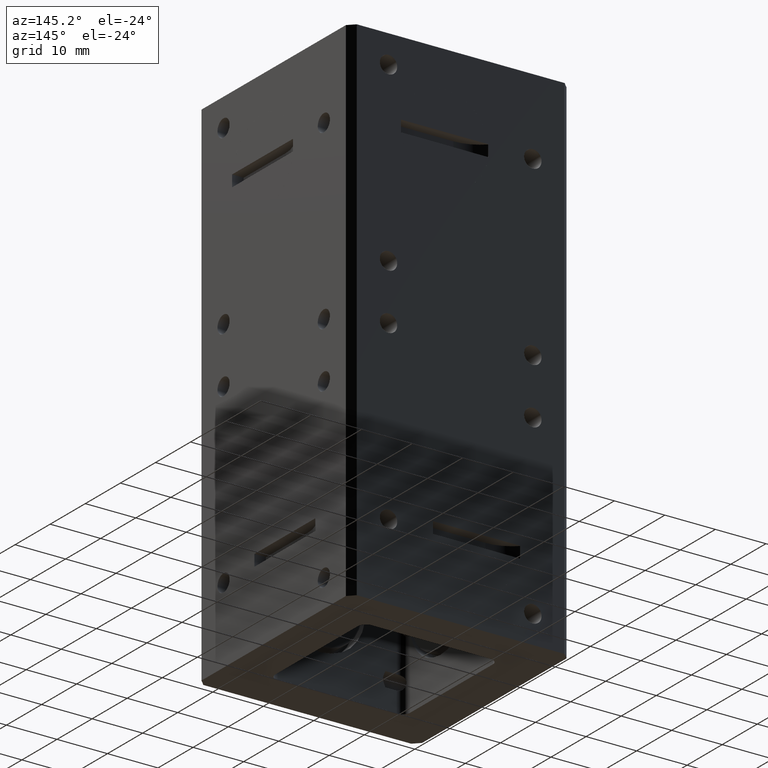
[diagram: clean part render]
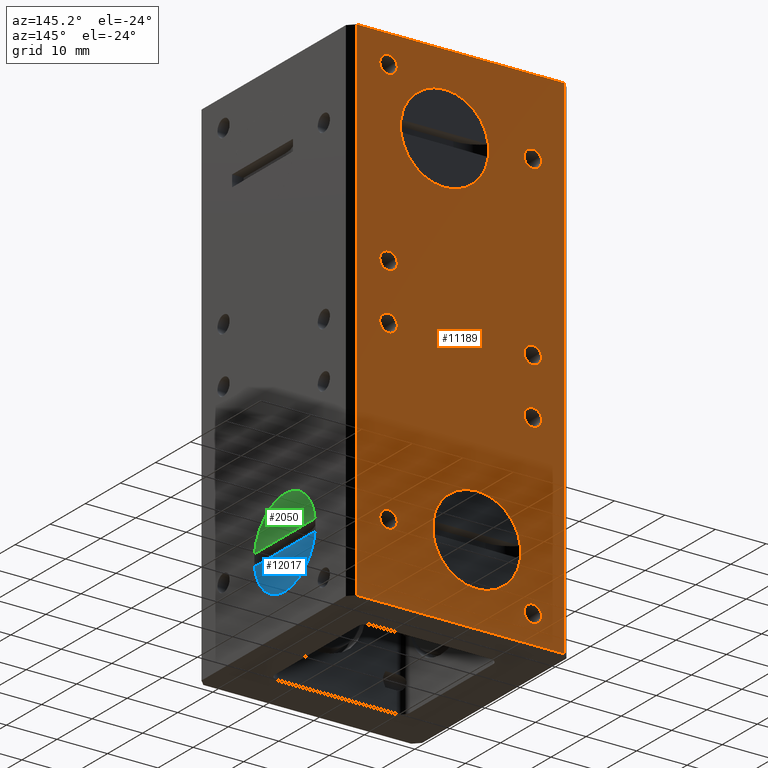
[diagram: same view with three faces highlighted in distinct colors, each labeled with its STEP entity id]
A machine part, auxiliary view with three faces highlighted in distinct colors.
Their STEP definitions:

[orange] entity #11189 — the highlighted planar face has unit normal (0, -1, 0).
#88 = AXIS2_PLACEMENT_3D ( 'NONE', #95, #17871, #4424 ) ;
#95 = CARTESIAN_POINT ( 'NONE',  ( 0.5624999999999998890, 0.8599999999999994316, -1.405999999999999917 ) ) ;
#109 = CARTESIAN_POINT ( 'NONE',  ( 0.5625000000000001110, 0.8599999999999994316, 1.848999999999999533 ) ) ;
#129 = ORIENTED_EDGE ( 'NONE', *, *, #7908, .F. ) ;
#264 = EDGE_CURVE ( 'NONE', #1842, #12292, #7792, .T. ) ;
#309 = VERTEX_POINT ( 'NONE', #17495 ) ;
#434 = AXIS2_PLACEMENT_3D ( 'NONE', #13406, #13317, #7281 ) ;
#470 = EDGE_CURVE ( 'NONE', #14263, #17972, #12404, .T. ) ;
#534 = CIRCLE ( 'NONE', #3014, 0.06799999999999958855 ) ;
#582 = CARTESIAN_POINT ( 'NONE',  ( -0.5624999999999998890, 0.8599999999999994316, -0.4739999999999995883 ) ) ;
#1021 = EDGE_LOOP ( 'NONE', ( #12176, #14943 ) ) ;
#1146 = EDGE_CURVE ( 'NONE', #15289, #16502, #15166, .T. ) ;
#1309 = CIRCLE ( 'NONE', #14279, 0.06799999999999965794 ) ;
#1315 = CIRCLE ( 'NONE', #3814, 0.06799999999999965794 ) ;
#1324 = DIRECTION ( 'NONE',  ( 0.000000000000000000, 0.000000000000000000, 1.000000000000000000 ) ) ;
#1355 = AXIS2_PLACEMENT_3D ( 'NONE', #5087, #10958, #12014 ) ;
#1435 = EDGE_CURVE ( 'NONE', #12044, #15687, #6507, .T. ) ;
#1735 = VERTEX_POINT ( 'NONE', #7807 ) ;
#1842 = VERTEX_POINT ( 'NONE', #14563 ) ;
#1938 = CARTESIAN_POINT ( 'NONE',  ( -0.8099999999999986100, 0.8599999999999994316, 2.000000000000000000 ) ) ;
#2017 = EDGE_LOOP ( 'NONE', ( #7349, #8642 ) ) ;
#2065 = CARTESIAN_POINT ( 'NONE',  ( 0.8099999999999993872, 0.8599999999999994316, 2.000000000000000000 ) ) ;
#2158 = DIRECTION ( 'NONE',  ( -1.000000000000000000, -0.000000000000000000, -0.000000000000000000 ) ) ;
#2169 = CARTESIAN_POINT ( 'NONE',  ( -0.5625000000000001110, 0.8599999999999994316, 0.03099999999999974998 ) ) ;
#2452 = AXIS2_PLACEMENT_3D ( 'NONE', #10950, #16778, #3603 ) ;
#2652 = DIRECTION ( 'NONE',  ( 0.000000000000000000, -1.000000000000000000, 0.000000000000000000 ) ) ;
#2660 = DIRECTION ( 'NONE',  ( -0.000000000000000000, 1.000000000000000000, -0.000000000000000000 ) ) ;
#2683 = DIRECTION ( 'NONE',  ( -0.000000000000000000, 1.000000000000000000, -0.000000000000000000 ) ) ;
#3014 = AXIS2_PLACEMENT_3D ( 'NONE', #5016, #10605, #7634 ) ;
#3208 = ORIENTED_EDGE ( 'NONE', *, *, #7103, .T. ) ;
#3260 = DIRECTION ( 'NONE',  ( -0.000000000000000000, 1.000000000000000000, -0.000000000000000000 ) ) ;
#3307 = AXIS2_PLACEMENT_3D ( 'NONE', #6373, #4992, #10776 ) ;
#3334 = EDGE_CURVE ( 'NONE', #7761, #1735, #1309, .T. ) ;
#3350 = DIRECTION ( 'NONE',  ( 0.000000000000000000, 0.000000000000000000, 1.000000000000000000 ) ) ;
#3514 = CARTESIAN_POINT ( 'NONE',  ( 0.5625000000000001110, 0.8599999999999994316, 0.03699999999999963041 ) ) ;
#3603 = DIRECTION ( 'NONE',  ( 0.000000000000000000, 0.000000000000000000, 1.000000000000000000 ) ) ;
#3811 = FACE_BOUND ( 'NONE', #8923, .T. ) ;
#3814 = AXIS2_PLACEMENT_3D ( 'NONE', #12681, #9511, #11329 ) ;
#3905 = FACE_BOUND ( 'NONE', #7319, .T. ) ;
#4048 = EDGE_LOOP ( 'NONE', ( #3208, #6656, #9623, #8269 ) ) ;
#4105 = CARTESIAN_POINT ( 'NONE',  ( -0.5624999999999998890, 0.8599999999999994316, 1.473999999999999533 ) ) ;
#4174 = EDGE_CURVE ( 'NONE', #17972, #14263, #18911, .T. ) ;
#4415 = DIRECTION ( 'NONE',  ( -0.000000000000000000, 1.000000000000000000, -0.000000000000000000 ) ) ;
#4424 = DIRECTION ( 'NONE',  ( 0.000000000000000000, 0.000000000000000000, 1.000000000000000000 ) ) ;
#4468 = CARTESIAN_POINT ( 'NONE',  ( -0.5625000000000001110, 0.8599999999999994316, 0.09899999999999933853 ) ) ;
#4556 = CIRCLE ( 'NONE', #12539, 0.06799999999999958855 ) ;
#4632 = AXIS2_PLACEMENT_3D ( 'NONE', #10798, #3260, #3350 ) ;
#4714 = LINE ( 'NONE', #14976, #11012 ) ;
#4723 = AXIS2_PLACEMENT_3D ( 'NONE', #6758, #11542, #10101 ) ;
#4978 = EDGE_CURVE ( 'NONE', #14436, #8352, #4556, .T. ) ;
#4992 = DIRECTION ( 'NONE',  ( -0.000000000000000000, 1.000000000000000000, -0.000000000000000000 ) ) ;
#5016 = CARTESIAN_POINT ( 'NONE',  ( -0.5624999999999998890, 0.8599999999999994316, -0.4059999999999999720 ) ) ;
#5081 = CARTESIAN_POINT ( 'NONE',  ( -0.8599999999999988765, 0.8599999999999994316, 2.000000000000000000 ) ) ;
#5087 = CARTESIAN_POINT ( 'NONE',  ( 0.1249999999999999584, 0.8599999999999994316, 1.375000000000000000 ) ) ;
#5125 = CARTESIAN_POINT ( 'NONE',  ( -0.5624999999999998890, 0.8599999999999994316, 1.405999999999999917 ) ) ;
#5134 = DIRECTION ( 'NONE',  ( -1.000000000000000000, -0.000000000000000000, -0.000000000000000000 ) ) ;
#5187 = DIRECTION ( 'NONE',  ( -0.000000000000000000, 1.000000000000000000, -0.000000000000000000 ) ) ;
#5286 = FACE_BOUND ( 'NONE', #10952, .T. ) ;
#5409 = VERTEX_POINT ( 'NONE', #582 ) ;
#5417 = CIRCLE ( 'NONE', #6037, 0.06799999999999958855 ) ;
#5570 = EDGE_CURVE ( 'NONE', #18494, #5980, #18985, .T. ) ;
#5772 = CARTESIAN_POINT ( 'NONE',  ( -0.5625000000000001110, 0.8599999999999994316, -1.781000000000000139 ) ) ;
#5980 = VERTEX_POINT ( 'NONE', #1938 ) ;
#6037 = AXIS2_PLACEMENT_3D ( 'NONE', #18136, #13532, #15042 ) ;
#6048 = AXIS2_PLACEMENT_3D ( 'NONE', #15807, #2652, #12489 ) ;
#6187 = VERTEX_POINT ( 'NONE', #17893 ) ;
#6200 = AXIS2_PLACEMENT_3D ( 'NONE', #7778, #4415, #13631 ) ;
#6373 = CARTESIAN_POINT ( 'NONE',  ( 0.5625000000000001110, 0.8599999999999994316, -0.03100000000000002406 ) ) ;
#6507 = CIRCLE ( 'NONE', #4632, 0.3437500000000000000 ) ;
#6511 = CARTESIAN_POINT ( 'NONE',  ( -0.1250000000000000278, 0.8599999999999994316, -1.031250000000000000 ) ) ;
#6564 = CARTESIAN_POINT ( 'NONE',  ( 0.5624999999999998890, 0.8599999999999994316, 0.4059999999999999720 ) ) ;
#6647 = AXIS2_PLACEMENT_3D ( 'NONE', #5125, #8204, #15091 ) ;
#6654 = DIRECTION ( 'NONE',  ( -0.000000000000000000, 1.000000000000000000, -0.000000000000000000 ) ) ;
#6656 = ORIENTED_EDGE ( 'NONE', *, *, #5570, .T. ) ;
#6720 = ORIENTED_EDGE ( 'NONE', *, *, #11896, .F. ) ;
#6758 = CARTESIAN_POINT ( 'NONE',  ( -0.5624999999999998890, 0.8599999999999994316, 1.405999999999999917 ) ) ;
#6855 = AXIS2_PLACEMENT_3D ( 'NONE', #6564, #6654, #9509 ) ;
#6941 = FACE_BOUND ( 'NONE', #14538, .T. ) ;
#7021 = FACE_BOUND ( 'NONE', #18147, .T. ) ;
#7041 = AXIS2_PLACEMENT_3D ( 'NONE', #15844, #2683, #14433 ) ;
#7103 = EDGE_CURVE ( 'NONE', #6187, #18494, #15284, .T. ) ;
#7165 = DIRECTION ( 'NONE',  ( -0.000000000000000000, 1.000000000000000000, -0.000000000000000000 ) ) ;
#7212 = EDGE_CURVE ( 'NONE', #14196, #6187, #4714, .T. ) ;
#7227 = ORIENTED_EDGE ( 'NONE', *, *, #3334, .F. ) ;
#7281 = DIRECTION ( 'NONE',  ( 0.000000000000000000, 0.000000000000000000, 1.000000000000000000 ) ) ;
#7286 = AXIS2_PLACEMENT_3D ( 'NONE', #13011, #7165, #11576 ) ;
#7298 = ORIENTED_EDGE ( 'NONE', *, *, #19003, .F. ) ;
#7319 = EDGE_LOOP ( 'NONE', ( #10813, #9603 ) ) ;
#7349 = ORIENTED_EDGE ( 'NONE', *, *, #264, .F. ) ;
#7428 = AXIS2_PLACEMENT_3D ( 'NONE', #9575, #9668, #15496 ) ;
#7634 = DIRECTION ( 'NONE',  ( 0.000000000000000000, 0.000000000000000000, 1.000000000000000000 ) ) ;
#7761 = VERTEX_POINT ( 'NONE', #9049 ) ;
#7778 = CARTESIAN_POINT ( 'NONE',  ( -0.1250000000000000278, 0.8599999999999994316, -1.375000000000000000 ) ) ;
#7792 = CIRCLE ( 'NONE', #88, 0.06799999999999965794 ) ;
#7807 = CARTESIAN_POINT ( 'NONE',  ( -0.5625000000000001110, 0.8599999999999994316, -1.848999999999999755 ) ) ;
#7881 = CARTESIAN_POINT ( 'NONE',  ( -0.5625000000000001110, 0.8599999999999994316, -0.03699999999999983857 ) ) ;
#7908 = EDGE_CURVE ( 'NONE', #15490, #9451, #17453, .T. ) ;
#8165 = LINE ( 'NONE', #5081, #17230 ) ;
#8171 = FACE_BOUND ( 'NONE', #11935, .T. ) ;
#8204 = DIRECTION ( 'NONE',  ( -0.000000000000000000, 1.000000000000000000, -0.000000000000000000 ) ) ;
#8269 = ORIENTED_EDGE ( 'NONE', *, *, #7212, .T. ) ;
#8352 = VERTEX_POINT ( 'NONE', #4468 ) ;
#8546 = VERTEX_POINT ( 'NONE', #109 ) ;
#8571 = ORIENTED_EDGE ( 'NONE', *, *, #18595, .F. ) ;
#8605 = ORIENTED_EDGE ( 'NONE', *, *, #10422, .F. ) ;
#8638 = EDGE_CURVE ( 'NONE', #5409, #309, #534, .T. ) ;
#8642 = ORIENTED_EDGE ( 'NONE', *, *, #16126, .F. ) ;
#8651 = CIRCLE ( 'NONE', #15658, 0.06799999999999965794 ) ;
#8877 = ORIENTED_EDGE ( 'NONE', *, *, #11144, .F. ) ;
#8923 = EDGE_LOOP ( 'NONE', ( #9294, #8605 ) ) ;
#9049 = CARTESIAN_POINT ( 'NONE',  ( -0.5625000000000001110, 0.8599999999999994316, -1.713000000000000522 ) ) ;
#9196 = EDGE_CURVE ( 'NONE', #8352, #14436, #15604, .T. ) ;
#9285 = EDGE_LOOP ( 'NONE', ( #9792, #6720 ) ) ;
#9294 = ORIENTED_EDGE ( 'NONE', *, *, #13118, .F. ) ;
#9375 = CARTESIAN_POINT ( 'NONE',  ( -0.8599999999999988765, 0.8599999999999994316, -2.000000000000000000 ) ) ;
#9451 = VERTEX_POINT ( 'NONE', #15641 ) ;
#9509 = DIRECTION ( 'NONE',  ( 0.000000000000000000, 0.000000000000000000, 1.000000000000000000 ) ) ;
#9511 = DIRECTION ( 'NONE',  ( -0.000000000000000000, 1.000000000000000000, -0.000000000000000000 ) ) ;
#9537 = DIRECTION ( 'NONE',  ( 0.000000000000000000, 0.000000000000000000, 1.000000000000000000 ) ) ;
#9575 = CARTESIAN_POINT ( 'NONE',  ( 0.5624999999999998890, 0.8599999999999994316, 0.4059999999999999720 ) ) ;
#9603 = ORIENTED_EDGE ( 'NONE', *, *, #4978, .F. ) ;
#9623 = ORIENTED_EDGE ( 'NONE', *, *, #12252, .F. ) ;
#9668 = DIRECTION ( 'NONE',  ( -0.000000000000000000, 1.000000000000000000, -0.000000000000000000 ) ) ;
#9697 = FACE_BOUND ( 'NONE', #2017, .T. ) ;
#9789 = CARTESIAN_POINT ( 'NONE',  ( 0.5624999999999998890, 0.8599999999999994316, -1.473999999999999533 ) ) ;
#9792 = ORIENTED_EDGE ( 'NONE', *, *, #1435, .F. ) ;
#9868 = CIRCLE ( 'NONE', #6200, 0.3437500000000000000 ) ;
#9918 = EDGE_CURVE ( 'NONE', #9451, #15490, #15270, .T. ) ;
#9996 = PLANE ( 'NONE',  #6048 ) ;
#10035 = CIRCLE ( 'NONE', #1355, 0.3437499999999998335 ) ;
#10101 = DIRECTION ( 'NONE',  ( 0.000000000000000000, 0.000000000000000000, 1.000000000000000000 ) ) ;
#10422 = EDGE_CURVE ( 'NONE', #16165, #8546, #1315, .T. ) ;
#10481 = CIRCLE ( 'NONE', #7428, 0.06799999999999951916 ) ;
#10513 = CIRCLE ( 'NONE', #6855, 0.06799999999999951916 ) ;
#10605 = DIRECTION ( 'NONE',  ( -0.000000000000000000, 1.000000000000000000, -0.000000000000000000 ) ) ;
#10750 = CARTESIAN_POINT ( 'NONE',  ( -0.8099999999999986100, 0.8599999999999994316, -2.000000000000000000 ) ) ;
#10776 = DIRECTION ( 'NONE',  ( 0.000000000000000000, 0.000000000000000000, 1.000000000000000000 ) ) ;
#10798 = CARTESIAN_POINT ( 'NONE',  ( -0.1250000000000000278, 0.8599999999999994316, -1.375000000000000000 ) ) ;
#10813 = ORIENTED_EDGE ( 'NONE', *, *, #9196, .F. ) ;
#10950 = CARTESIAN_POINT ( 'NONE',  ( 0.5624999999999998890, 0.8599999999999994316, -1.405999999999999917 ) ) ;
#10952 = EDGE_LOOP ( 'NONE', ( #7227, #7298 ) ) ;
#10958 = DIRECTION ( 'NONE',  ( -0.000000000000000000, 1.000000000000000000, -0.000000000000000000 ) ) ;
#10977 = CARTESIAN_POINT ( 'NONE',  ( 0.5625000000000001110, 0.8599999999999994316, 1.780999999999999917 ) ) ;
#11012 = VECTOR ( 'NONE', #12024, 39.37007874015748143 ) ;
#11095 = ORIENTED_EDGE ( 'NONE', *, *, #1146, .F. ) ;
#11144 = EDGE_CURVE ( 'NONE', #16502, #15289, #10035, .T. ) ;
#11189 = ADVANCED_FACE ( 'NONE', ( #8171, #12581, #6941, #7021, #5286, #9697, #12685, #3811, #18549, #3905, #12865 ), #9996, .F. ) ;
#11329 = DIRECTION ( 'NONE',  ( 0.000000000000000000, 0.000000000000000000, 1.000000000000000000 ) ) ;
#11542 = DIRECTION ( 'NONE',  ( -0.000000000000000000, 1.000000000000000000, -0.000000000000000000 ) ) ;
#11576 = DIRECTION ( 'NONE',  ( 0.000000000000000000, 0.000000000000000000, 1.000000000000000000 ) ) ;
#11688 = DIRECTION ( 'NONE',  ( -0.000000000000000000, 1.000000000000000000, -0.000000000000000000 ) ) ;
#11896 = EDGE_CURVE ( 'NONE', #15687, #12044, #9868, .T. ) ;
#11935 = EDGE_LOOP ( 'NONE', ( #8877, #11095 ) ) ;
#11975 = CARTESIAN_POINT ( 'NONE',  ( -0.5625000000000001110, 0.8599999999999994316, 0.03099999999999974998 ) ) ;
#12014 = DIRECTION ( 'NONE',  ( 0.000000000000000000, 0.000000000000000000, 1.000000000000000000 ) ) ;
#12024 = DIRECTION ( 'NONE',  ( 0.000000000000000000, 0.000000000000000000, -1.000000000000000000 ) ) ;
#12044 = VERTEX_POINT ( 'NONE', #6511 ) ;
#12176 = ORIENTED_EDGE ( 'NONE', *, *, #16363, .F. ) ;
#12252 = EDGE_CURVE ( 'NONE', #14196, #5980, #8165, .T. ) ;
#12292 = VERTEX_POINT ( 'NONE', #9789 ) ;
#12306 = CIRCLE ( 'NONE', #2452, 0.06799999999999965794 ) ;
#12342 = VERTEX_POINT ( 'NONE', #14392 ) ;
#12404 = CIRCLE ( 'NONE', #4723, 0.06799999999999965794 ) ;
#12489 = DIRECTION ( 'NONE',  ( 0.000000000000000000, -0.000000000000000000, -1.000000000000000000 ) ) ;
#12539 = AXIS2_PLACEMENT_3D ( 'NONE', #2169, #5187, #16897 ) ;
#12581 = FACE_BOUND ( 'NONE', #9285, .T. ) ;
#12681 = CARTESIAN_POINT ( 'NONE',  ( 0.5625000000000001110, 0.8599999999999994316, 1.780999999999999917 ) ) ;
#12685 = FACE_BOUND ( 'NONE', #18160, .T. ) ;
#12865 = FACE_OUTER_BOUND ( 'NONE', #4048, .T. ) ;
#13011 = CARTESIAN_POINT ( 'NONE',  ( -0.5625000000000001110, 0.8599999999999994316, -1.781000000000000139 ) ) ;
#13056 = DIRECTION ( 'NONE',  ( 0.000000000000000000, 0.000000000000000000, 1.000000000000000000 ) ) ;
#13118 = EDGE_CURVE ( 'NONE', #8546, #16165, #8651, .T. ) ;
#13181 = AXIS2_PLACEMENT_3D ( 'NONE', #11975, #11688, #13324 ) ;
#13317 = DIRECTION ( 'NONE',  ( -0.000000000000000000, 1.000000000000000000, -0.000000000000000000 ) ) ;
#13324 = DIRECTION ( 'NONE',  ( 0.000000000000000000, 0.000000000000000000, 1.000000000000000000 ) ) ;
#13398 = CARTESIAN_POINT ( 'NONE',  ( 0.1249999999999999584, 0.8599999999999994316, 1.718749999999999778 ) ) ;
#13406 = CARTESIAN_POINT ( 'NONE',  ( 0.1249999999999999584, 0.8599999999999994316, 1.375000000000000000 ) ) ;
#13508 = VECTOR ( 'NONE', #1324, 39.37007874015748143 ) ;
#13532 = DIRECTION ( 'NONE',  ( -0.000000000000000000, 1.000000000000000000, -0.000000000000000000 ) ) ;
#13631 = DIRECTION ( 'NONE',  ( 0.000000000000000000, 0.000000000000000000, 1.000000000000000000 ) ) ;
#13732 = ORIENTED_EDGE ( 'NONE', *, *, #9918, .F. ) ;
#13915 = VERTEX_POINT ( 'NONE', #16722 ) ;
#14196 = VERTEX_POINT ( 'NONE', #2065 ) ;
#14263 = VERTEX_POINT ( 'NONE', #4105 ) ;
#14279 = AXIS2_PLACEMENT_3D ( 'NONE', #5772, #2660, #13056 ) ;
#14392 = CARTESIAN_POINT ( 'NONE',  ( 0.5624999999999998890, 0.8599999999999994316, 0.3380000000000004667 ) ) ;
#14433 = DIRECTION ( 'NONE',  ( 0.000000000000000000, 0.000000000000000000, 1.000000000000000000 ) ) ;
#14436 = VERTEX_POINT ( 'NONE', #7881 ) ;
#14538 = EDGE_LOOP ( 'NONE', ( #129, #13732 ) ) ;
#14563 = CARTESIAN_POINT ( 'NONE',  ( 0.5624999999999998890, 0.8599999999999994316, -1.338000000000000300 ) ) ;
#14905 = ORIENTED_EDGE ( 'NONE', *, *, #470, .F. ) ;
#14907 = CARTESIAN_POINT ( 'NONE',  ( -0.8099999999999986100, 0.8599999999999994316, 2.000000000000000000 ) ) ;
#14943 = ORIENTED_EDGE ( 'NONE', *, *, #16732, .F. ) ;
#14954 = VECTOR ( 'NONE', #5134, 39.37007874015748143 ) ;
#14976 = CARTESIAN_POINT ( 'NONE',  ( 0.8099999999999999423, 0.8599999999999994316, 2.000000000000000000 ) ) ;
#15042 = DIRECTION ( 'NONE',  ( 0.000000000000000000, 0.000000000000000000, 1.000000000000000000 ) ) ;
#15091 = DIRECTION ( 'NONE',  ( 0.000000000000000000, 0.000000000000000000, 1.000000000000000000 ) ) ;
#15166 = CIRCLE ( 'NONE', #434, 0.3437499999999998335 ) ;
#15171 = ORIENTED_EDGE ( 'NONE', *, *, #4174, .F. ) ;
#15270 = CIRCLE ( 'NONE', #7041, 0.06799999999999965794 ) ;
#15284 = LINE ( 'NONE', #9375, #14954 ) ;
#15289 = VERTEX_POINT ( 'NONE', #16199 ) ;
#15490 = VERTEX_POINT ( 'NONE', #3514 ) ;
#15496 = DIRECTION ( 'NONE',  ( 0.000000000000000000, 0.000000000000000000, 1.000000000000000000 ) ) ;
#15514 = CIRCLE ( 'NONE', #7286, 0.06799999999999965794 ) ;
#15604 = CIRCLE ( 'NONE', #13181, 0.06799999999999958855 ) ;
#15641 = CARTESIAN_POINT ( 'NONE',  ( 0.5625000000000001110, 0.8599999999999994316, -0.09899999999999968547 ) ) ;
#15658 = AXIS2_PLACEMENT_3D ( 'NONE', #10977, #16812, #9537 ) ;
#15687 = VERTEX_POINT ( 'NONE', #17019 ) ;
#15807 = CARTESIAN_POINT ( 'NONE',  ( -0.8599999999999988765, 0.8599999999999994316, 2.000000000000000000 ) ) ;
#15844 = CARTESIAN_POINT ( 'NONE',  ( 0.5625000000000001110, 0.8599999999999994316, -0.03100000000000002406 ) ) ;
#15982 = CARTESIAN_POINT ( 'NONE',  ( -0.5624999999999998890, 0.8599999999999994316, 1.338000000000000300 ) ) ;
#16126 = EDGE_CURVE ( 'NONE', #12292, #1842, #12306, .T. ) ;
#16165 = VERTEX_POINT ( 'NONE', #17077 ) ;
#16199 = CARTESIAN_POINT ( 'NONE',  ( 0.1250000000000000000, 0.8599999999999994316, 1.031250000000000000 ) ) ;
#16363 = EDGE_CURVE ( 'NONE', #13915, #12342, #10481, .T. ) ;
#16502 = VERTEX_POINT ( 'NONE', #13398 ) ;
#16722 = CARTESIAN_POINT ( 'NONE',  ( 0.5624999999999998890, 0.8599999999999994316, 0.4739999999999995328 ) ) ;
#16732 = EDGE_CURVE ( 'NONE', #12342, #13915, #10513, .T. ) ;
#16778 = DIRECTION ( 'NONE',  ( -0.000000000000000000, 1.000000000000000000, -0.000000000000000000 ) ) ;
#16812 = DIRECTION ( 'NONE',  ( -0.000000000000000000, 1.000000000000000000, -0.000000000000000000 ) ) ;
#16897 = DIRECTION ( 'NONE',  ( 0.000000000000000000, 0.000000000000000000, 1.000000000000000000 ) ) ;
#17019 = CARTESIAN_POINT ( 'NONE',  ( -0.1249999999999999861, 0.8599999999999994316, -1.718749999999999778 ) ) ;
#17077 = CARTESIAN_POINT ( 'NONE',  ( 0.5625000000000001110, 0.8599999999999994316, 1.713000000000000300 ) ) ;
#17230 = VECTOR ( 'NONE', #2158, 39.37007874015748143 ) ;
#17453 = CIRCLE ( 'NONE', #3307, 0.06799999999999965794 ) ;
#17495 = CARTESIAN_POINT ( 'NONE',  ( -0.5624999999999998890, 0.8599999999999994316, -0.3380000000000004112 ) ) ;
#17580 = ORIENTED_EDGE ( 'NONE', *, *, #8638, .F. ) ;
#17871 = DIRECTION ( 'NONE',  ( -0.000000000000000000, 1.000000000000000000, -0.000000000000000000 ) ) ;
#17893 = CARTESIAN_POINT ( 'NONE',  ( 0.8099999999999993872, 0.8599999999999994316, -2.000000000000000000 ) ) ;
#17972 = VERTEX_POINT ( 'NONE', #15982 ) ;
#18136 = CARTESIAN_POINT ( 'NONE',  ( -0.5624999999999998890, 0.8599999999999994316, -0.4059999999999999720 ) ) ;
#18147 = EDGE_LOOP ( 'NONE', ( #8571, #17580 ) ) ;
#18160 = EDGE_LOOP ( 'NONE', ( #14905, #15171 ) ) ;
#18494 = VERTEX_POINT ( 'NONE', #10750 ) ;
#18549 = FACE_BOUND ( 'NONE', #1021, .T. ) ;
#18595 = EDGE_CURVE ( 'NONE', #309, #5409, #5417, .T. ) ;
#18911 = CIRCLE ( 'NONE', #6647, 0.06799999999999965794 ) ;
#18985 = LINE ( 'NONE', #14907, #13508 ) ;
#19003 = EDGE_CURVE ( 'NONE', #1735, #7761, #15514, .T. ) ;

[blue] entity #12017 — the highlighted planar face has unit normal (1, -0, 0).
#659 = CARTESIAN_POINT ( 'NONE',  ( 0.8599999999999998757, 0.1249999999999970163, -1.375000000000000000 ) ) ;
#690 = CARTESIAN_POINT ( 'NONE',  ( 0.8599999999999986544, -0.2156844838967005018, -1.419999999999999929 ) ) ;
#903 = AXIS2_PLACEMENT_3D ( 'NONE', #5915, #13388, #17786 ) ;
#1335 = CARTESIAN_POINT ( 'NONE',  ( 0.8600000000000010969, 0.4656844838966946454, -1.419999999999999929 ) ) ;
#1378 = EDGE_CURVE ( 'NONE', #7285, #1431, #5891, .T. ) ;
#1431 = VERTEX_POINT ( 'NONE', #13478 ) ;
#1761 = CARTESIAN_POINT ( 'NONE',  ( 0.8599999999999998757, 0.1249999999999970163, -1.419999999999999929 ) ) ;
#2204 = DIRECTION ( 'NONE',  ( 1.000000000000000000, -3.491481338843132961E-15, 0.000000000000000000 ) ) ;
#2524 = DIRECTION ( 'NONE',  ( 3.491481338843132961E-15, 1.000000000000000000, 0.000000000000000000 ) ) ;
#4058 = EDGE_LOOP ( 'NONE', ( #7833, #15606, #11301 ) ) ;
#4749 = FACE_OUTER_BOUND ( 'NONE', #4058, .T. ) ;
#5288 = CARTESIAN_POINT ( 'NONE',  ( 0.8599999999999998757, 0.1249999999999970163, -1.375000000000000000 ) ) ;
#5392 = DIRECTION ( 'NONE',  ( 1.000000000000000000, -3.491481338843133355E-15, 0.000000000000000000 ) ) ;
#5891 = CIRCLE ( 'NONE', #903, 0.3436435909019099344 ) ;
#5915 = CARTESIAN_POINT ( 'NONE',  ( 0.8599999999999998757, 0.1249999999999970163, -1.375000000000000000 ) ) ;
#6081 = VECTOR ( 'NONE', #2524, 39.37007874015748143 ) ;
#6877 = EDGE_CURVE ( 'NONE', #7285, #13474, #12750, .T. ) ;
#7285 = VERTEX_POINT ( 'NONE', #690 ) ;
#7833 = ORIENTED_EDGE ( 'NONE', *, *, #6877, .F. ) ;
#11301 = ORIENTED_EDGE ( 'NONE', *, *, #14312, .T. ) ;
#12017 = ADVANCED_FACE ( 'NONE', ( #4749 ), #16440, .T. ) ;
#12750 = LINE ( 'NONE', #1761, #6081 ) ;
#13388 = DIRECTION ( 'NONE',  ( 1.000000000000000000, -3.491481338843133355E-15, 0.000000000000000000 ) ) ;
#13474 = VERTEX_POINT ( 'NONE', #1335 ) ;
#13478 = CARTESIAN_POINT ( 'NONE',  ( 0.8599999999999998757, 0.1249999999999970163, -1.718643590901909768 ) ) ;
#14312 = EDGE_CURVE ( 'NONE', #1431, #13474, #18520, .T. ) ;
#14765 = AXIS2_PLACEMENT_3D ( 'NONE', #659, #2204, #15192 ) ;
#14817 = AXIS2_PLACEMENT_3D ( 'NONE', #5288, #5392, #15612 ) ;
#15192 = DIRECTION ( 'NONE',  ( 0.000000000000000000, 0.000000000000000000, 1.000000000000000000 ) ) ;
#15606 = ORIENTED_EDGE ( 'NONE', *, *, #1378, .T. ) ;
#15612 = DIRECTION ( 'NONE',  ( 0.000000000000000000, 0.000000000000000000, 1.000000000000000000 ) ) ;
#16440 = PLANE ( 'NONE',  #14765 ) ;
#17786 = DIRECTION ( 'NONE',  ( 0.000000000000000000, 0.000000000000000000, 1.000000000000000000 ) ) ;
#18520 = CIRCLE ( 'NONE', #14817, 0.3436435909019099344 ) ;

[green] entity #2050 — the highlighted planar face has unit normal (1, -0, 0).
#163 = DIRECTION ( 'NONE',  ( 1.000000000000000000, -3.491481338843133355E-15, 0.000000000000000000 ) ) ;
#593 = EDGE_LOOP ( 'NONE', ( #12140, #7711, #9186 ) ) ;
#2021 = PLANE ( 'NONE',  #10707 ) ;
#2050 = ADVANCED_FACE ( 'NONE', ( #5042 ), #2021, .T. ) ;
#2668 = VERTEX_POINT ( 'NONE', #15987 ) ;
#3215 = DIRECTION ( 'NONE',  ( 0.000000000000000000, 0.000000000000000000, 1.000000000000000000 ) ) ;
#4308 = CARTESIAN_POINT ( 'NONE',  ( 0.8599999999999998757, 0.1249999999999970163, -1.375000000000000000 ) ) ;
#4737 = EDGE_CURVE ( 'NONE', #2668, #5942, #7641, .T. ) ;
#5042 = FACE_OUTER_BOUND ( 'NONE', #593, .T. ) ;
#5942 = VERTEX_POINT ( 'NONE', #13905 ) ;
#6107 = DIRECTION ( 'NONE',  ( 3.491481338843132961E-15, 1.000000000000000000, 0.000000000000000000 ) ) ;
#6443 = CARTESIAN_POINT ( 'NONE',  ( 0.8599999999999998757, 0.1249999999999970163, -1.375000000000000000 ) ) ;
#7213 = CIRCLE ( 'NONE', #7835, 0.3436435909019099344 ) ;
#7362 = CARTESIAN_POINT ( 'NONE',  ( 0.8599999999999998757, 0.1249999999999970163, -1.330000000000000071 ) ) ;
#7622 = VECTOR ( 'NONE', #6107, 39.37007874015748143 ) ;
#7641 = LINE ( 'NONE', #7362, #7622 ) ;
#7711 = ORIENTED_EDGE ( 'NONE', *, *, #14462, .T. ) ;
#7835 = AXIS2_PLACEMENT_3D ( 'NONE', #4308, #163, #12977 ) ;
#7935 = CARTESIAN_POINT ( 'NONE',  ( 0.8599999999999998757, 0.1249999999999970163, -1.375000000000000000 ) ) ;
#9186 = ORIENTED_EDGE ( 'NONE', *, *, #10211, .T. ) ;
#9314 = DIRECTION ( 'NONE',  ( 1.000000000000000000, -3.491481338843133355E-15, 0.000000000000000000 ) ) ;
#10211 = EDGE_CURVE ( 'NONE', #17987, #2668, #7213, .T. ) ;
#10562 = AXIS2_PLACEMENT_3D ( 'NONE', #6443, #9314, #3215 ) ;
#10707 = AXIS2_PLACEMENT_3D ( 'NONE', #7935, #13893, #13789 ) ;
#12140 = ORIENTED_EDGE ( 'NONE', *, *, #4737, .T. ) ;
#12702 = CIRCLE ( 'NONE', #10562, 0.3436435909019099344 ) ;
#12977 = DIRECTION ( 'NONE',  ( 0.000000000000000000, 0.000000000000000000, 1.000000000000000000 ) ) ;
#13789 = DIRECTION ( 'NONE',  ( 0.000000000000000000, 0.000000000000000000, 1.000000000000000000 ) ) ;
#13893 = DIRECTION ( 'NONE',  ( 1.000000000000000000, -3.491481338843132961E-15, 0.000000000000000000 ) ) ;
#13905 = CARTESIAN_POINT ( 'NONE',  ( 0.8600000000000010969, 0.4656844838966946454, -1.330000000000000071 ) ) ;
#14462 = EDGE_CURVE ( 'NONE', #5942, #17987, #12702, .T. ) ;
#15987 = CARTESIAN_POINT ( 'NONE',  ( 0.8599999999999986544, -0.2156844838967005018, -1.330000000000000071 ) ) ;
#17713 = CARTESIAN_POINT ( 'NONE',  ( 0.8599999999999998757, 0.1249999999999969746, -1.031356409098090010 ) ) ;
#17987 = VERTEX_POINT ( 'NONE', #17713 ) ;